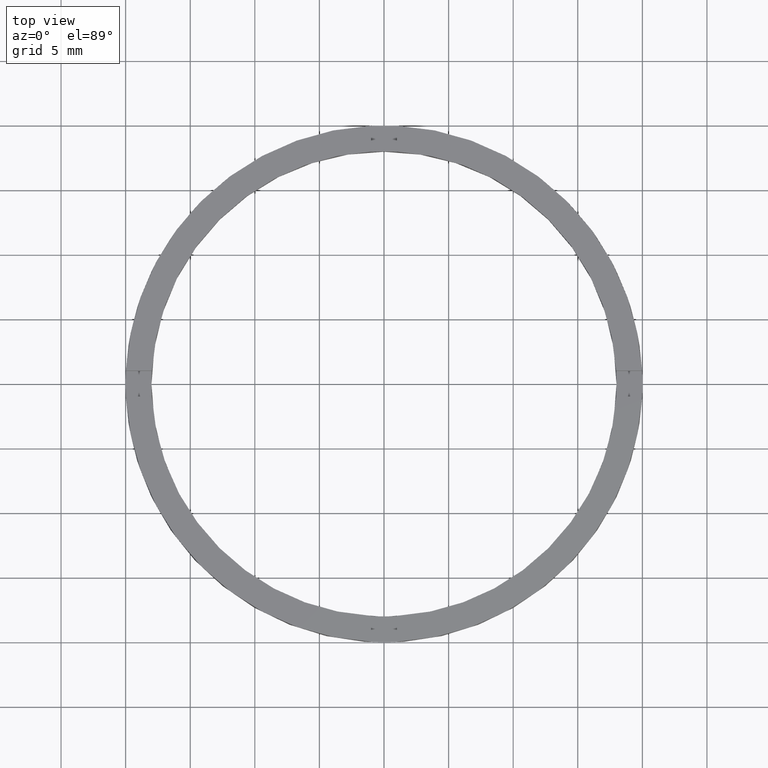
[diagram: clean part render]
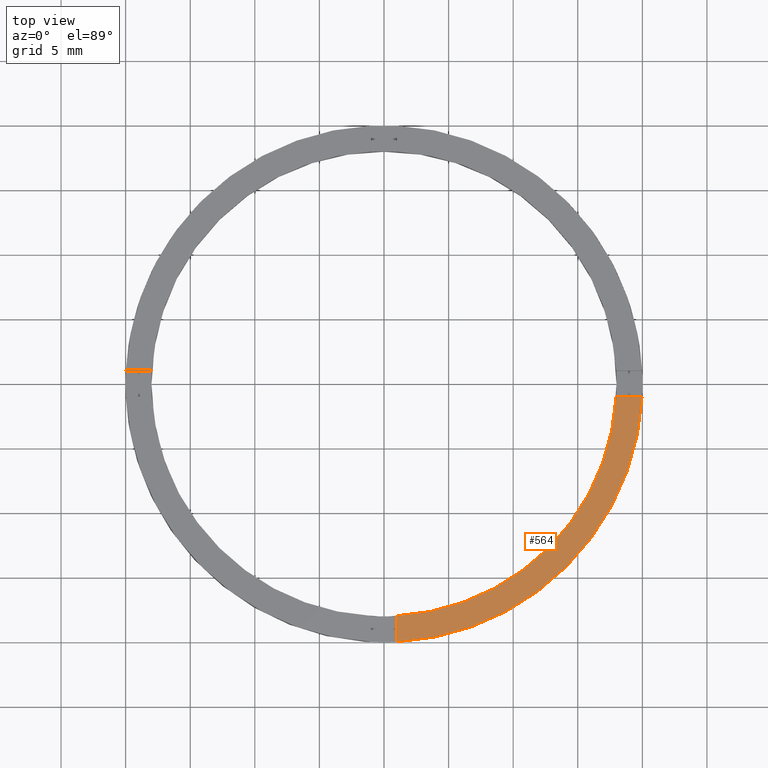
[diagram: same view with one face highlighted and labeled with its STEP entity id]
A machine part, top view. The second image highlights one B-rep face of the part: STEP entity #564.
In plain terms, the highlighted planar face has unit normal (0, 0, 1).
Its self-contained STEP definition (entity closure, byte-faithful):
#2 = AXIS2_PLACEMENT_3D ( 'NONE', #396, #19, #80 ) ;
#19 = DIRECTION ( 'NONE',  ( 0.000000000000000000, 0.000000000000000000, 1.000000000000000000 ) ) ;
#31 = CIRCLE ( 'NONE', #2, 18.00000000000000000 ) ;
#46 = LINE ( 'NONE', #299, #536 ) ;
#80 = DIRECTION ( 'NONE',  ( 1.000000000000000000, 0.000000000000000000, 0.000000000000000000 ) ) ;
#113 = EDGE_LOOP ( 'NONE', ( #725, #238, #647, #731 ) ) ;
#125 = VERTEX_POINT ( 'NONE', #256 ) ;
#141 = EDGE_CURVE ( 'NONE', #749, #370, #46, .T. ) ;
#148 = FACE_OUTER_BOUND ( 'NONE', #113, .T. ) ;
#158 = LINE ( 'NONE', #398, #429 ) ;
#238 = ORIENTED_EDGE ( 'NONE', *, *, #334, .F. ) ;
#240 = DIRECTION ( 'NONE',  ( 0.000000000000000000, 0.000000000000000000, 1.000000000000000000 ) ) ;
#248 = DIRECTION ( 'NONE',  ( -1.301042606982605321E-16, 1.000000000000000000, -0.000000000000000000 ) ) ;
#256 = CARTESIAN_POINT ( 'NONE',  ( 0.9999999999998395728, -19.97498435543818829, 2.500000000000000000 ) ) ;
#271 = CARTESIAN_POINT ( 'NONE',  ( 19.97498435543817408, -1.000000000000156986, 2.500000000000000000 ) ) ;
#299 = CARTESIAN_POINT ( 'NONE',  ( 9.999999999999994671, -1.000000000000157652, 2.500000000000000000 ) ) ;
#334 = EDGE_CURVE ( 'NONE', #477, #749, #31, .T. ) ;
#370 = VERTEX_POINT ( 'NONE', #271 ) ;
#396 = CARTESIAN_POINT ( 'NONE',  ( 0.000000000000000000, 0.000000000000000000, 2.500000000000000000 ) ) ;
#398 = CARTESIAN_POINT ( 'NONE',  ( 0.9999999999998382405, -10.00000000000018119, 2.500000000000000000 ) ) ;
#405 = DIRECTION ( 'NONE',  ( 0.000000000000000000, 0.000000000000000000, 1.000000000000000000 ) ) ;
#407 = DIRECTION ( 'NONE',  ( 1.000000000000000000, 6.505213034913025371E-17, 0.000000000000000000 ) ) ;
#429 = VECTOR ( 'NONE', #248, 1000.000000000000000 ) ;
#473 = EDGE_CURVE ( 'NONE', #125, #370, #700, .T. ) ;
#476 = AXIS2_PLACEMENT_3D ( 'NONE', #776, #240, #656 ) ;
#477 = VERTEX_POINT ( 'NONE', #523 ) ;
#488 = DIRECTION ( 'NONE',  ( 1.000000000000000000, 0.000000000000000000, 0.000000000000000000 ) ) ;
#492 = CARTESIAN_POINT ( 'NONE',  ( 0.000000000000000000, 0.000000000000000000, 2.500000000000000000 ) ) ;
#523 = CARTESIAN_POINT ( 'NONE',  ( 0.9999999999998393507, -17.97220075561143560, 2.500000000000000000 ) ) ;
#527 = EDGE_CURVE ( 'NONE', #125, #477, #158, .T. ) ;
#536 = VECTOR ( 'NONE', #407, 1000.000000000000000 ) ;
#564 = ADVANCED_FACE ( 'NONE', ( #148 ), #716, .T. ) ;
#566 = AXIS2_PLACEMENT_3D ( 'NONE', #492, #405, #488 ) ;
#647 = ORIENTED_EDGE ( 'NONE', *, *, #527, .F. ) ;
#656 = DIRECTION ( 'NONE',  ( 1.000000000000000000, 0.000000000000000000, -0.000000000000000000 ) ) ;
#700 = CIRCLE ( 'NONE', #566, 20.00000000000000000 ) ;
#716 = PLANE ( 'NONE',  #476 ) ;
#725 = ORIENTED_EDGE ( 'NONE', *, *, #141, .F. ) ;
#731 = ORIENTED_EDGE ( 'NONE', *, *, #473, .T. ) ;
#749 = VERTEX_POINT ( 'NONE', #783 ) ;
#776 = CARTESIAN_POINT ( 'NONE',  ( 0.000000000000000000, 0.000000000000000000, 2.500000000000000000 ) ) ;
#783 = CARTESIAN_POINT ( 'NONE',  ( 17.97220075561141783, -1.000000000000157208, 2.500000000000000000 ) ) ;